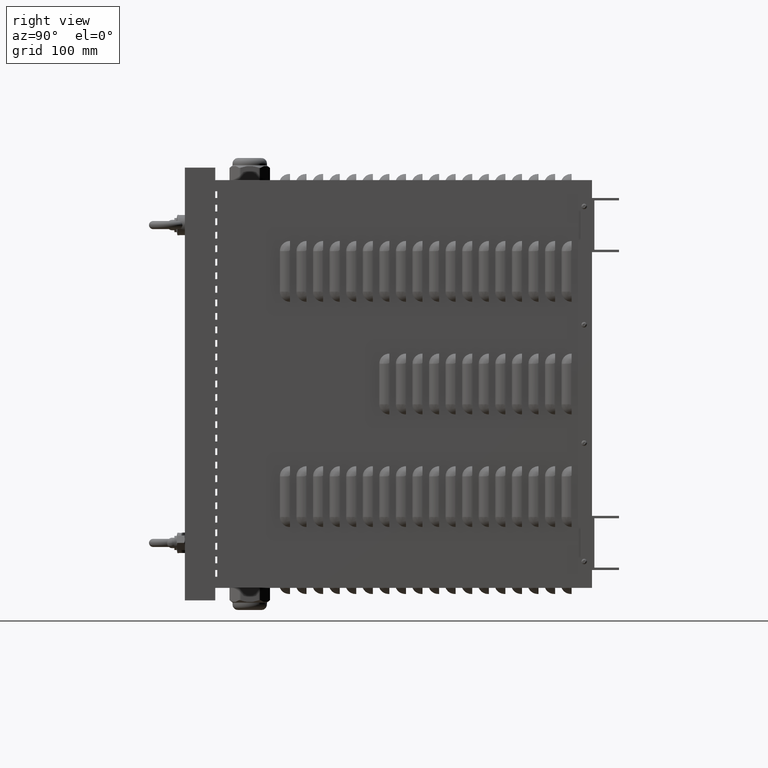
[diagram: clean part render]
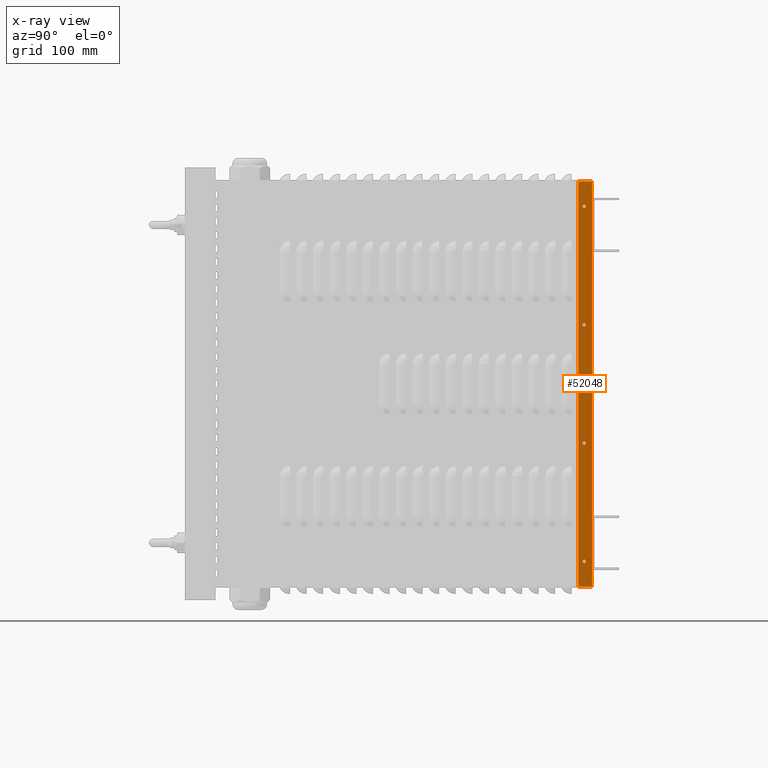
[diagram: x-ray — body ghosted, one internal face saturated and labeled with its STEP entity id]
A machine part, right view, then the same camera in x-ray: the body is ghosted and one INTERNAL B-rep face — a face not visible from any outside direction — is saturated and labeled: STEP entity #52048.
In plain terms, the highlighted planar face has unit normal (1, -0, 0).
Its self-contained STEP definition (entity closure, byte-faithful):
#1112=FACE_BOUND('',#14305,.T.);
#1113=FACE_BOUND('',#14306,.T.);
#1114=FACE_BOUND('',#14307,.T.);
#1115=FACE_BOUND('',#14308,.T.);
#7320=CIRCLE('',#57236,2.5);
#7324=CIRCLE('',#57242,2.5);
#7328=CIRCLE('',#57248,2.5);
#7332=CIRCLE('',#57254,2.5);
#10871=FACE_OUTER_BOUND('',#14304,.T.);
#14304=EDGE_LOOP('',(#47400,#47401,#47402,#47403));
#14305=EDGE_LOOP('',(#47404));
#14306=EDGE_LOOP('',(#47405));
#14307=EDGE_LOOP('',(#47406));
#14308=EDGE_LOOP('',(#47407));
#18651=LINE('',#89462,#22604);
#18652=LINE('',#89465,#22605);
#18653=LINE('',#89467,#22606);
#18654=LINE('',#89468,#22607);
#22604=VECTOR('',#70975,10.);
#22605=VECTOR('',#70978,10.);
#22606=VECTOR('',#70979,10.);
#22607=VECTOR('',#70980,10.);
#27046=VERTEX_POINT('',#89388);
#27050=VERTEX_POINT('',#89400);
#27054=VERTEX_POINT('',#89412);
#27058=VERTEX_POINT('',#89424);
#27068=VERTEX_POINT('',#89455);
#27071=VERTEX_POINT('',#89460);
#27072=VERTEX_POINT('',#89464);
#27073=VERTEX_POINT('',#89466);
#33985=EDGE_CURVE('',#27046,#27046,#7320,.T.);
#33991=EDGE_CURVE('',#27050,#27050,#7324,.T.);
#33997=EDGE_CURVE('',#27054,#27054,#7328,.T.);
#34003=EDGE_CURVE('',#27058,#27058,#7332,.T.);
#34021=EDGE_CURVE('',#27068,#27071,#18651,.T.);
#34022=EDGE_CURVE('',#27072,#27068,#18652,.T.);
#34023=EDGE_CURVE('',#27073,#27071,#18653,.T.);
#34024=EDGE_CURVE('',#27072,#27073,#18654,.T.);
#47400=ORIENTED_EDGE('',*,*,#34022,.T.);
#47401=ORIENTED_EDGE('',*,*,#34021,.T.);
#47402=ORIENTED_EDGE('',*,*,#34023,.F.);
#47403=ORIENTED_EDGE('',*,*,#34024,.F.);
#47404=ORIENTED_EDGE('',*,*,#33985,.T.);
#47405=ORIENTED_EDGE('',*,*,#33991,.T.);
#47406=ORIENTED_EDGE('',*,*,#33997,.T.);
#47407=ORIENTED_EDGE('',*,*,#34003,.T.);
#49565=PLANE('',#57262);
#52048=ADVANCED_FACE('',(#10871,#1112,#1113,#1114,#1115),#49565,.T.);
#57236=AXIS2_PLACEMENT_3D('',#89389,#70901,#70902);
#57242=AXIS2_PLACEMENT_3D('',#89401,#70915,#70916);
#57248=AXIS2_PLACEMENT_3D('',#89413,#70929,#70930);
#57254=AXIS2_PLACEMENT_3D('',#89425,#70943,#70944);
#57262=AXIS2_PLACEMENT_3D('',#89463,#70976,#70977);
#70901=DIRECTION('center_axis',(-1.,0.,5.93107458898247E-16));
#70902=DIRECTION('ref_axis',(5.88118142774407E-16,0.,1.));
#70915=DIRECTION('center_axis',(-1.,0.,5.93107458898247E-16));
#70916=DIRECTION('ref_axis',(5.76115731697379E-16,0.,1.));
#70929=DIRECTION('center_axis',(-1.,0.,5.93107458898247E-16));
#70930=DIRECTION('ref_axis',(5.76115731697379E-16,0.,1.));
#70943=DIRECTION('center_axis',(-1.,0.,5.93107458898247E-16));
#70944=DIRECTION('ref_axis',(5.76115731697379E-16,0.,1.));
#70975=DIRECTION('',(0.,1.,0.));
#70976=DIRECTION('center_axis',(1.,0.,-5.93107458898247E-16));
#70977=DIRECTION('ref_axis',(-5.93107458898247E-16,0.,-1.));
#70978=DIRECTION('',(-5.93107458898247E-16,0.,-1.));
#70979=DIRECTION('',(-5.93107458898247E-16,0.,-1.));
#70980=DIRECTION('',(0.,1.,0.));
#89388=CARTESIAN_POINT('',(2.04622073319895E-14,11.5,34.5));
#89389=CARTESIAN_POINT('Origin',(2.47489716408332E-14,11.5,37.));
#89400=CARTESIAN_POINT('',(2.28049817946376E-13,11.5,384.5));
#89401=CARTESIAN_POINT('Origin',(2.33134832760206E-13,11.5,387.));
#89412=CARTESIAN_POINT('',(1.24256012639183E-13,11.5,209.5));
#89413=CARTESIAN_POINT('Origin',(1.32314579713165E-13,11.5,212.));
#89424=CARTESIAN_POINT('',(3.31843623253569E-13,11.5,559.5));
#89425=CARTESIAN_POINT('Origin',(3.33955085807247E-13,11.5,562.));
#89455=CARTESIAN_POINT('',(0.,0.,0.));
#89460=CARTESIAN_POINT('',(0.,20.,0.));
#89462=CARTESIAN_POINT('',(0.,0.,0.));
#89463=CARTESIAN_POINT('Origin',(3.5527136788005E-13,0.,599.));
#89464=CARTESIAN_POINT('',(3.5527136788005E-13,0.,599.));
#89465=CARTESIAN_POINT('',(3.5527136788005E-13,0.,599.));
#89466=CARTESIAN_POINT('',(3.5527136788005E-13,20.,599.));
#89467=CARTESIAN_POINT('',(3.5527136788005E-13,20.,599.));
#89468=CARTESIAN_POINT('',(3.5527136788005E-13,0.,599.));